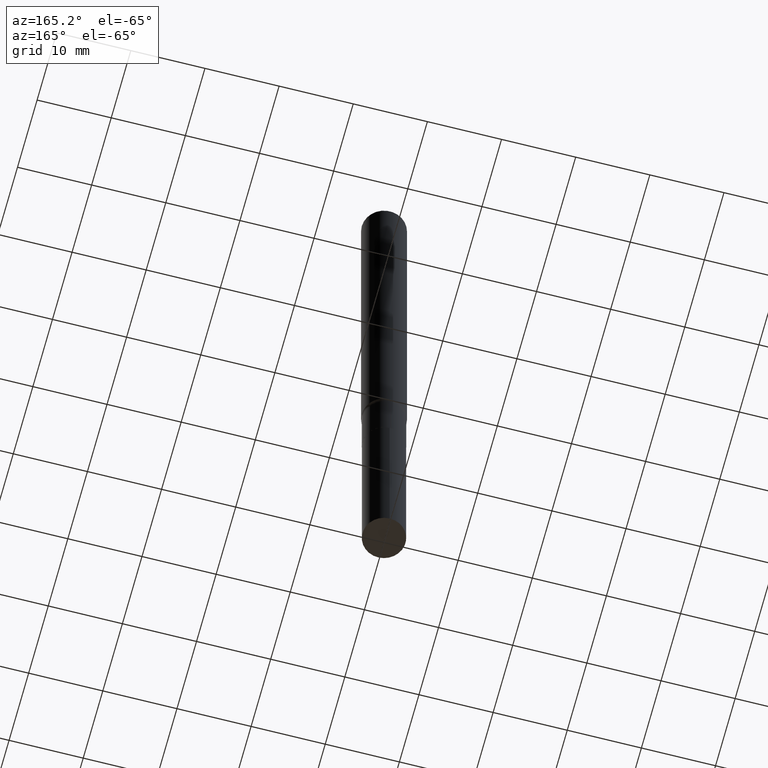
[diagram: clean part render]
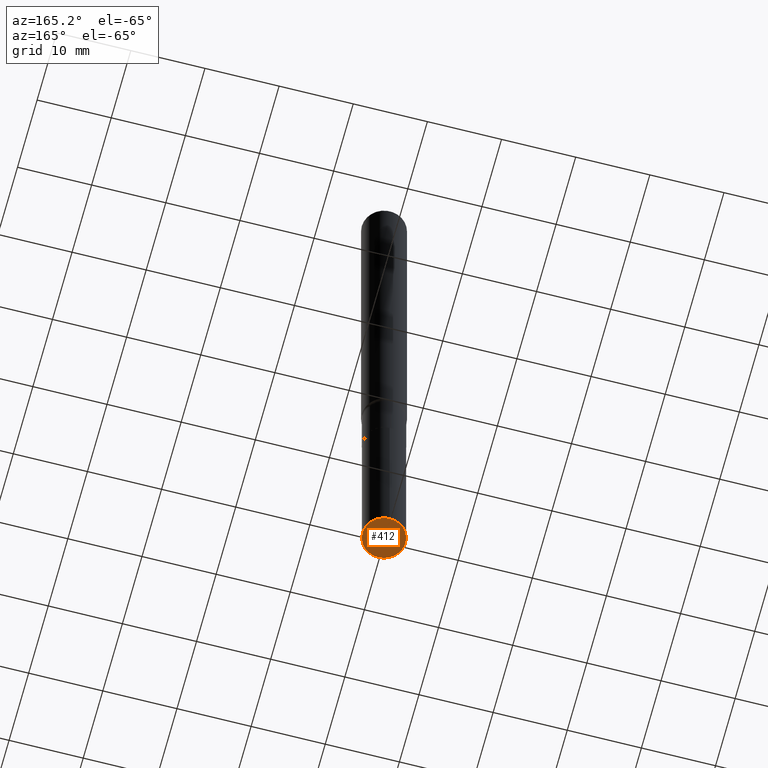
[diagram: same view with one face highlighted and labeled with its STEP entity id]
A machine part, auxiliary view. The second image highlights one B-rep face of the part: STEP entity #412.
In plain terms, the highlighted planar face has unit normal (-0, 0, 1).
Its self-contained STEP definition (entity closure, byte-faithful):
#32 = FACE_OUTER_BOUND ( 'NONE', #184, .T. ) ;
#54 = EDGE_CURVE ( 'NONE', #369, #327, #164, .T. ) ;
#67 = DIRECTION ( 'NONE',  ( -6.982962677686265922E-15, -1.000000000000000000, 3.500087051895992261E-15 ) ) ;
#106 = ORIENTED_EDGE ( 'NONE', *, *, #220, .F. ) ;
#137 = CARTESIAN_POINT ( 'NONE',  ( -3.354469140264243471E-29, -3.096099858396702516E-14, -3.740200000000000635 ) ) ;
#139 = DIRECTION ( 'NONE',  ( -2.439459468878845651E-29, 3.500087051895992261E-15, 1.000000000000000000 ) ) ;
#153 = CIRCLE ( 'NONE', #358, 0.1141500000000000153 ) ;
#164 = CIRCLE ( 'NONE', #190, 0.1141500000000000153 ) ;
#171 = CARTESIAN_POINT ( 'NONE',  ( 8.110845328702322726E-16, 0.1141499999999869563, -3.740200000000001079 ) ) ;
#176 = DIRECTION ( 'NONE',  ( -2.439459468878846212E-29, 3.500087051895991866E-15, 1.000000000000000000 ) ) ;
#184 = EDGE_LOOP ( 'NONE', ( #106, #321 ) ) ;
#190 = AXIS2_PLACEMENT_3D ( 'NONE', #266, #270, #199 ) ;
#199 = DIRECTION ( 'NONE',  ( -6.982962677686265922E-15, -1.000000000000000000, 4.786417860121354194E-15 ) ) ;
#220 = EDGE_CURVE ( 'NONE', #327, #369, #153, .T. ) ;
#255 = AXIS2_PLACEMENT_3D ( 'NONE', #137, #139, #67 ) ;
#266 = CARTESIAN_POINT ( 'NONE',  ( 9.139920139182118548E-29, -1.306832199932537301E-14, -3.740200000000000635 ) ) ;
#270 = DIRECTION ( 'NONE',  ( -2.439459468878846212E-29, 3.500087051895991866E-15, 1.000000000000000000 ) ) ;
#280 = CARTESIAN_POINT ( 'NONE',  ( -7.971051896577959137E-16, -0.1141500000000130743, -3.740200000000000191 ) ) ;
#282 = DIRECTION ( 'NONE',  ( -6.982962677686265922E-15, -1.000000000000000000, 4.786417860121354194E-15 ) ) ;
#321 = ORIENTED_EDGE ( 'NONE', *, *, #54, .F. ) ;
#322 = PLANE ( 'NONE',  #255 ) ;
#327 = VERTEX_POINT ( 'NONE', #280 ) ;
#355 = CARTESIAN_POINT ( 'NONE',  ( 9.139920139182118548E-29, -1.306832199932537301E-14, -3.740200000000000635 ) ) ;
#358 = AXIS2_PLACEMENT_3D ( 'NONE', #355, #176, #282 ) ;
#369 = VERTEX_POINT ( 'NONE', #171 ) ;
#412 = ADVANCED_FACE ( 'NONE', ( #32 ), #322, .F. ) ;